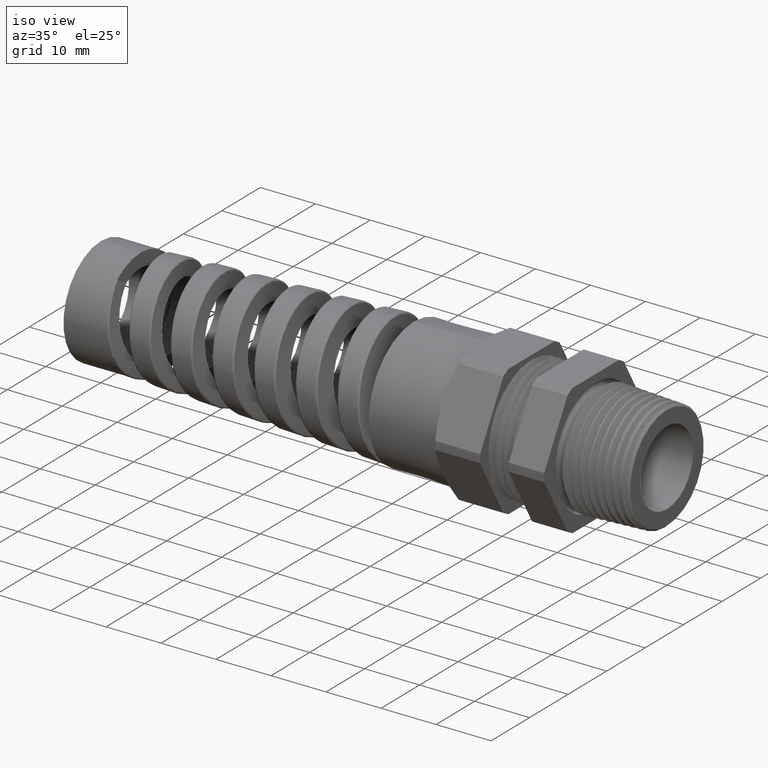
[diagram: clean part render]
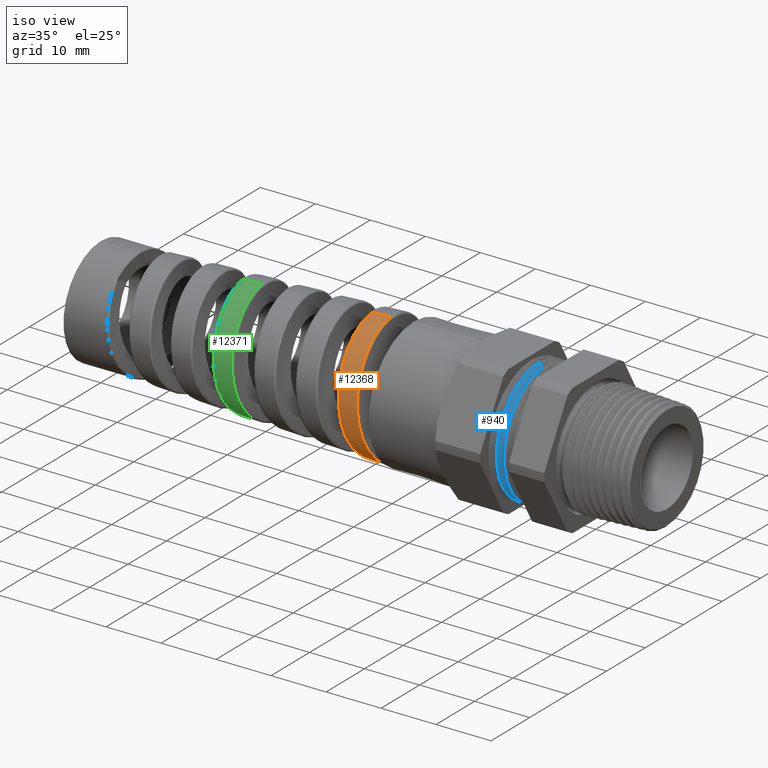
[diagram: same view with three faces highlighted in distinct colors, each labeled with its STEP entity id]
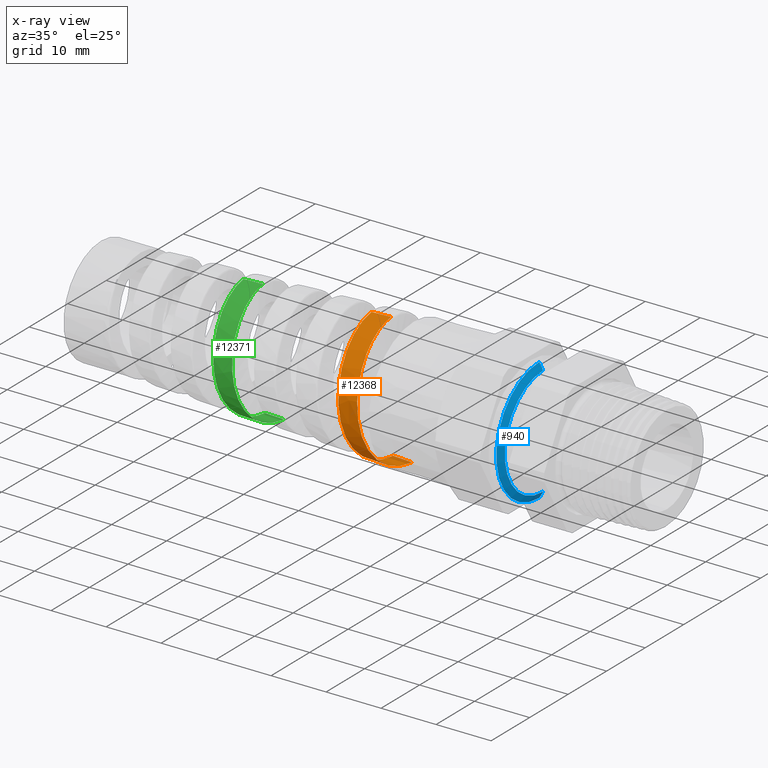
[diagram: x-ray of the same camera — body ghosted, the three highlighted faces saturated]
A machine part, iso view with three faces highlighted in distinct colors.
The next image is the same camera in x-ray (body ghosted, the three faces saturated) — at least one of them is partly hidden behind the body in this view.
Their STEP definitions:

[orange] entity #12368 — the highlighted conical surface has half-angle 2.001 deg.
#393 = EDGE_CURVE ( 'NONE', #7571, #7597, #3219, .T. ) ;
#3216 = DIRECTION ( 'NONE',  ( 0.9993904554178625300, 4.275258673359080400E-018, 0.03491013634572581700 ) ) ;
#3217 = VECTOR ( 'NONE', #3216, 39.37007874015748900 ) ;
#3218 = CARTESIAN_POINT ( 'NONE',  ( -0.8125000000000001100, 5.755839955992556000E-017, 0.4699999999999997000 ) ) ;
#3219 = LINE ( 'NONE', #3218, #3217 ) ;
#7571 = VERTEX_POINT ( 'NONE', #8181 ) ;
#7597 = VERTEX_POINT ( 'NONE', #8137 ) ;
#8137 = CARTESIAN_POINT ( 'NONE',  ( -1.465141312794867800, 4.954529261898974400E-013, 0.4472023065749649600 ) ) ;
#8181 = CARTESIAN_POINT ( 'NONE',  ( -1.603568336751290300, -1.489853139386474200E-015, 0.4423668528701051300 ) ) ;
#10684 = CARTESIAN_POINT ( 'NONE',  ( -1.312209371053904200, 8.222431747549015300E-014, -0.4525444377798915600 ) ) ;
#10752 = CARTESIAN_POINT ( 'NONE',  ( -1.318575534608142300, -0.05888124564318002900, -0.4487181702074030700 ) ) ;
#10753 = CARTESIAN_POINT ( 'NONE',  ( -1.315378167853282100, -0.02938545523317982100, -0.4517217542718365300 ) ) ;
#10754 = CARTESIAN_POINT ( 'NONE',  ( -1.313791009773092700, -0.01467450608213547900, -0.4524891888798901500 ) ) ;
#10755 = CARTESIAN_POINT ( 'NONE',  ( -1.312209371053904200, 8.222431747549015300E-014, -0.4525444377798915600 ) ) ;
#10756 = B_SPLINE_CURVE_WITH_KNOTS ( 'NONE', 3,
 ( #10755, #10754, #10753, #10752, #10824, #10823, #10822, #10821, #10820, #10819, #10818, #10817, #10816, #10815, #10814, #10813, #10812, #10811, #10810, #10809, #10808, #10807, #10806, #10805, #10804, #10803, #10802, #10801, #10800, #10799, #10798, #10797, #10796, #10795, #10794, #10793, #10792, #10791, #10790, #10789, #10788, #10787, #10786, #10785, #10784, #10783 ),
 .UNSPECIFIED., .F., .F.,
 ( 4, 2, 2, 2, 2, 2, 2, 2, 2, 2, 2, 2, 2, 2, 2, 2, 2, 2, 2, 2, 2, 2, 4 ),
 ( 0.002687642308744885200, 0.003826724862786683300, 0.004965807416828482400, 0.007243972524912081200, 0.008383055078953882000, 0.009522137632995683600, 0.01180030274107929000, 0.01407846784916289400, 0.01521755040320469500, 0.01635663295724649700, 0.01863479806533009700, 0.02091296317341369600, 0.02319112828149729600, 0.02433021083553909800, 0.02546929338958089900, 0.02774745849766450600, 0.03002562360574810900, 0.03116470615978991400, 0.03230378871383171600, 0.03458195382191531900, 0.03572103637595712400, 0.03686011892999892200, 0.03913828403808252600 ),
 .UNSPECIFIED. ) ;
#10779 = DIRECTION ( 'NONE',  ( 0.9993904554178625300, 0.0000000000000000000, -0.03491013634572581700 ) ) ;
#10780 = VECTOR ( 'NONE', #10779, 39.37007874015748900 ) ;
#10781 = CARTESIAN_POINT ( 'NONE',  ( -0.8125000000000001100, 0.0000000000000000000, -0.4699999999999997000 ) ) ;
#10782 = LINE ( 'NONE', #10781, #10780 ) ;
#10783 = CARTESIAN_POINT ( 'NONE',  ( -1.465141312794867800, 4.954529261898974400E-013, 0.4472023065749649600 ) ) ;
#10784 = CARTESIAN_POINT ( 'NONE',  ( -1.461921420796968400, -0.02961779108017513100, 0.4473147820024505100 ) ) ;
#10785 = CARTESIAN_POINT ( 'NONE',  ( -1.458743433776894100, -0.05882146215813661300, 0.4445118142382443200 ) ) ;
#10786 = CARTESIAN_POINT ( 'NONE',  ( -1.453947133954004700, -0.1020136535638736100, 0.4360598896748147900 ) ) ;
#10787 = CARTESIAN_POINT ( 'NONE',  ( -1.452343768974157200, -0.1163081308085358600, 0.4325295692158346900 ) ) ;
#10788 = CARTESIAN_POINT ( 'NONE',  ( -1.449114921291519300, -0.1446838231024024600, 0.4240011707235451500 ) ) ;
#10789 = CARTESIAN_POINT ( 'NONE',  ( -1.447497875440096200, -0.1586881145828206700, 0.4190179330741835600 ) ) ;
#10790 = CARTESIAN_POINT ( 'NONE',  ( -1.442701264456387000, -0.1994912566699423600, 0.4021946982351489200 ) ) ;
#10791 = CARTESIAN_POINT ( 'NONE',  ( -1.439539588943694600, -0.2253608864282575800, 0.3884217062358448800 ) ) ;
#10792 = CARTESIAN_POINT ( 'NONE',  ( -1.434749266899820300, -0.2621492826891932400, 0.3639167647814227600 ) ) ;
#10793 = CARTESIAN_POINT ( 'NONE',  ( -1.433135475111862600, -0.2741360321996753600, 0.3550480078668696300 ) ) ;
#10794 = CARTESIAN_POINT ( 'NONE',  ( -1.429930190904961100, -0.2970017232406690900, 0.3363034841885619300 ) ) ;
#10795 = CARTESIAN_POINT ( 'NONE',  ( -1.428337321923081700, -0.3078970164376643200, 0.3264288561997995600 ) ) ;
#10796 = CARTESIAN_POINT ( 'NONE',  ( -1.423563419324926500, -0.3390085140515496900, 0.2953372102358121600 ) ) ;
#10797 = CARTESIAN_POINT ( 'NONE',  ( -1.420386601834414500, -0.3576655022775728800, 0.2726666350403584300 ) ) ;
#10798 = CARTESIAN_POINT ( 'NONE',  ( -1.413933492444612300, -0.3906509154998609700, 0.2233068217233074600 ) ) ;
#10799 = CARTESIAN_POINT ( 'NONE',  ( -1.410751749127603800, -0.4045081059426081100, 0.1972943374230199400 ) ) ;
#10800 = CARTESIAN_POINT ( 'NONE',  ( -1.405994551776630600, -0.4213206493733224800, 0.1566708685485210500 ) ) ;
#10801 = CARTESIAN_POINT ( 'NONE',  ( -1.404408721910386000, -0.4262688663343969800, 0.1428437445281132100 ) ) ;
#10802 = CARTESIAN_POINT ( 'NONE',  ( -1.401219673645794300, -0.4348270660947277100, 0.1146081336986260700 ) ) ;
#10803 = CARTESIAN_POINT ( 'NONE',  ( -1.399608891852881300, -0.4384455912230883500, 0.1001298154856408000 ) ) ;
#10804 = CARTESIAN_POINT ( 'NONE',  ( -1.394820924247132100, -0.4470478700313502100, 0.05668303405232688600 ) ) ;
#10805 = CARTESIAN_POINT ( 'NONE',  ( -1.391664014847806100, -0.4498875259949270400, 0.02750548655281216700 ) ) ;
#10806 = CARTESIAN_POINT ( 'NONE',  ( -1.385296386945820100, -0.4498650357898812400, -0.03125574213339065600 ) ) ;
#10807 = CARTESIAN_POINT ( 'NONE',  ( -1.382059435145433800, -0.4469079354846208200, -0.06107524894473634300 ) ) ;
#10808 = CARTESIAN_POINT ( 'NONE',  ( -1.375700285235825500, -0.4353971029296712600, -0.1186855851561564900 ) ) ;
#10809 = CARTESIAN_POINT ( 'NONE',  ( -1.372553184155333100, -0.4268869507301921700, -0.1467413265745504400 ) ) ;
#10810 = CARTESIAN_POINT ( 'NONE',  ( -1.367776590573644100, -0.4099276877969880700, -0.1876720877331551100 ) ) ;
#10811 = CARTESIAN_POINT ( 'NONE',  ( -1.366170293259385800, -0.4035425113829151900, -0.2011589757500082400 ) ) ;
#10812 = CARTESIAN_POINT ( 'NONE',  ( -1.362990491807552400, -0.3896249562737886800, -0.2271651641871807200 ) ) ;
#10813 = CARTESIAN_POINT ( 'NONE',  ( -1.361408969255859100, -0.3820682471228069000, -0.2397551491852618300 ) ) ;
#10814 = CARTESIAN_POINT ( 'NONE',  ( -1.356664993033808200, -0.3576402820727260800, -0.2763074473746159300 ) ) ;
#10815 = CARTESIAN_POINT ( 'NONE',  ( -1.353493092561997900, -0.3389642573468700800, -0.2991275787414494100 ) ) ;
#10816 = CARTESIAN_POINT ( 'NONE',  ( -1.347074697536499300, -0.2970117583085000700, -0.3411164309290956000 ) ) ;
#10817 = CARTESIAN_POINT ( 'NONE',  ( -1.343916789611228700, -0.2743105218420138800, -0.3597343794906856500 ) ) ;
#10818 = CARTESIAN_POINT ( 'NONE',  ( -1.339179373444405100, -0.2377705676188457400, -0.3842197179325910200 ) ) ;
#10819 = CARTESIAN_POINT ( 'NONE',  ( -1.337599166250159400, -0.2251730146568993200, -0.3918037290910184600 ) ) ;
#10820 = CARTESIAN_POINT ( 'NONE',  ( -1.334419684038519000, -0.1991238906995756700, -0.4057869672649900800 ) ) ;
#10821 = CARTESIAN_POINT ( 'NONE',  ( -1.332818615911781400, -0.1856530481758413300, -0.4121838352934990000 ) ) ;
#10822 = CARTESIAN_POINT ( 'NONE',  ( -1.328065677520147800, -0.1448364417246374700, -0.4291695767027442500 ) ) ;
#10823 = CARTESIAN_POINT ( 'NONE',  ( -1.324928220218478700, -0.1168089179986212100, -0.4377390840938872300 ) ) ;
#10824 = CARTESIAN_POINT ( 'NONE',  ( -1.320174470161855000, -0.07356074809641409400, -0.4464861227173772000 ) ) ;
#10990 = CARTESIAN_POINT ( 'NONE',  ( -1.504629963252611400, -0.3992643735784838200, -0.1988944949467207900 ) ) ;
#10991 = CARTESIAN_POINT ( 'NONE',  ( -1.506213917387802900, -0.4054766819055655200, -0.1857620217883155200 ) ) ;
#10992 = CARTESIAN_POINT ( 'NONE',  ( -1.510966049022561600, -0.4221418328338003000, -0.1455938495777091000 ) ) ;
#10993 = CARTESIAN_POINT ( 'NONE',  ( -1.514140627696988400, -0.4306521901885410600, -0.1177441127596156700 ) ) ;
#10994 = CARTESIAN_POINT ( 'NONE',  ( -1.520573681881108400, -0.4421645185131553000, -0.06012783464594363700 ) ) ;
#10995 = CARTESIAN_POINT ( 'NONE',  ( -1.523731457960821700, -0.4450056849816952400, -0.03121785199996229500 ) ) ;
#10996 = CARTESIAN_POINT ( 'NONE',  ( -1.528480349558426000, -0.4450564932818205100, 0.01228357811907570400 ) ) ;
#10997 = CARTESIAN_POINT ( 'NONE',  ( -1.530065324600560000, -0.4443665183711529300, 0.02680696693565125200 ) ) ;
#10998 = CARTESIAN_POINT ( 'NONE',  ( -1.533256527760919400, -0.4415386244797566100, 0.05589879284642541900 ) ) ;
#10999 = CARTESIAN_POINT ( 'NONE',  ( -1.534866445107167400, -0.4393859348396750300, 0.07049879741305552200 ) ) ;
#11000 = CARTESIAN_POINT ( 'NONE',  ( -1.539648801965484100, -0.4308794798009651900, 0.1134122920349221700 ) ) ;
#11001 = CARTESIAN_POINT ( 'NONE',  ( -1.542808816170694800, -0.4224817301785335800, 0.1411593738708560600 ) ) ;
#11002 = CARTESIAN_POINT ( 'NONE',  ( -1.547596426721641800, -0.4058275736413460300, 0.1814870955404353200 ) ) ;
#11003 = CARTESIAN_POINT ( 'NONE',  ( -1.549205778688396400, -0.3995701849071499100, 0.1947588363601839600 ) ) ;
#11004 = CARTESIAN_POINT ( 'NONE',  ( -1.552427370997247800, -0.3857516599001322200, 0.2206422801889092500 ) ) ;
#11005 = CARTESIAN_POINT ( 'NONE',  ( -1.554025374312775400, -0.3782562180200744800, 0.2331427465553213000 ) ) ;
#11006 = CARTESIAN_POINT ( 'NONE',  ( -1.558798173982735900, -0.3540663084695773200, 0.2693595428878080600 ) ) ;
#11007 = CARTESIAN_POINT ( 'NONE',  ( -1.561957042781371200, -0.3356843236959316000, 0.2918026839822361300 ) ) ;
#11008 = CARTESIAN_POINT ( 'NONE',  ( -1.566761666307768800, -0.3046526621601770000, 0.3228442484903732400 ) ) ;
#11009 = CARTESIAN_POINT ( 'NONE',  ( -1.568373915317046000, -0.2937246634655965600, 0.3327397066144849900 ) ) ;
#11010 = CARTESIAN_POINT ( 'NONE',  ( -1.571566934626596100, -0.2711875601018175500, 0.3512097029223088000 ) ) ;
#11011 = CARTESIAN_POINT ( 'NONE',  ( -1.574746513704976800, -0.2478557874082033500, 0.3684790572788310100 ) ) ;
#11012 = CARTESIAN_POINT ( 'NONE',  ( -1.577931351473225400, -0.2229617131771468000, 0.3833816344722457700 ) ) ;
#11013 = CARTESIAN_POINT ( 'NONE',  ( -1.581133455344157400, -0.1972774467875090300, 0.3970842017703333200 ) ) ;
#11014 = CARTESIAN_POINT ( 'NONE',  ( -1.582751325749437200, -0.1839710207003049700, 0.4033628360539094900 ) ) ;
#11015 = CARTESIAN_POINT ( 'NONE',  ( -1.587589958762832600, -0.1433398078800198200, 0.4201126828262231000 ) ) ;
#11016 = CARTESIAN_POINT ( 'NONE',  ( -1.590765182135280000, -0.1155450490514995200, 0.4284575689937941700 ) ) ;
#11017 = CARTESIAN_POINT ( 'NONE',  ( -1.595544214840330900, -0.07283058603178295400, 0.4368555374011837100 ) ) ;
#11018 = CARTESIAN_POINT ( 'NONE',  ( -1.597140371302901300, -0.05842086407925204500, 0.4389633492312109400 ) ) ;
#11019 = CARTESIAN_POINT ( 'NONE',  ( -1.600356614124758000, -0.02924992630306180400, 0.4417542589321558600 ) ) ;
#11020 = CARTESIAN_POINT ( 'NONE',  ( -1.601969484048676700, -0.01455442791696354300, 0.4424227030791423900 ) ) ;
#11021 = CARTESIAN_POINT ( 'NONE',  ( -1.603568336751290300, -1.489853139386474200E-015, 0.4423668528701051300 ) ) ;
#11022 = FACE_OUTER_BOUND ( 'NONE', #12360, .T. ) ;
#11024 = B_SPLINE_CURVE_WITH_KNOTS ( 'NONE', 3,
 ( #11021, #11020, #11019, #11018, #11017, #11016, #11015, #11014, #11013, #11012, #11011, #11010, #11009, #11008, #11007, #11006, #11005, #11004, #11003, #11002, #11001, #11000, #10999, #10998, #10997, #10996, #10995, #10994, #10993, #10992, #10991, #10990, #11065, #11064, #11063, #11062, #11061, #11060, #11059, #11058, #11057, #11056, #11055, #11054, #11053, #11052, #11051 ),
 .UNSPECIFIED., .F., .F.,
 ( 4, 2, 2, 2, 2, 1, 2, 2, 2, 2, 2, 2, 2, 2, 2, 2, 2, 2, 2, 2, 2, 2, 2, 4 ),
 ( 0.3610147590502930700, 0.3621372730024491900, 0.3632597869546053100, 0.3655048148589176100, 0.3666273288110737400, 0.3677498427632298600, 0.3688723567153859900, 0.3699948706675421100, 0.3722398985718543600, 0.3733624125240104800, 0.3744849264761666000, 0.3767299543804789000, 0.3778524683326350300, 0.3789749822847911500, 0.3812200101891034000, 0.3834650380934156400, 0.3845875520455718200, 0.3857100659977279500, 0.3879550939020401900, 0.3902001218063524400, 0.3924451497106647400, 0.3935676636628208700, 0.3946901776149769900, 0.3969352055192892400 ),
 .UNSPECIFIED. ) ;
#11027 = CARTESIAN_POINT ( 'NONE',  ( -1.450700900281004700, -2.729856075225326100E-016, -0.4477067308137742700 ) ) ;
#11045 = DIRECTION ( 'NONE',  ( 0.0000000000000000000, 0.0000000000000000000, -1.000000000000000000 ) ) ;
#11046 = DIRECTION ( 'NONE',  ( 1.000000000000000000, 0.0000000000000000000, 0.0000000000000000000 ) ) ;
#11047 = AXIS2_PLACEMENT_3D ( 'NONE', #11050, #11046, #11045 ) ;
#11048 = CONICAL_SURFACE ( 'NONE', #11047, 0.4699999999999997000, 0.03491723117042447300 ) ;
#11050 = CARTESIAN_POINT ( 'NONE',  ( -0.8125000000000001100, 0.0000000000000000000, 0.0000000000000000000 ) ) ;
#11051 = CARTESIAN_POINT ( 'NONE',  ( -1.450700900281004700, -2.729856075225326100E-016, -0.4477067308137742700 ) ) ;
#11052 = CARTESIAN_POINT ( 'NONE',  ( -1.453898587296870800, -0.02938174525363302200, -0.4475950310380663000 ) ) ;
#11053 = CARTESIAN_POINT ( 'NONE',  ( -1.457043737550176400, -0.05834372666362930300, -0.4446117145386753700 ) ) ;
#11054 = CARTESIAN_POINT ( 'NONE',  ( -1.461765425288924700, -0.1009754748304708100, -0.4360154709600084200 ) ) ;
#11055 = CARTESIAN_POINT ( 'NONE',  ( -1.463340857065054100, -0.1150611572050864700, -0.4324581683144866400 ) ) ;
#11056 = CARTESIAN_POINT ( 'NONE',  ( -1.466511641143516400, -0.1429757707988910400, -0.4239315985732071700 ) ) ;
#11057 = CARTESIAN_POINT ( 'NONE',  ( -1.468114414723850700, -0.1568657763349625700, -0.4189312702050646500 ) ) ;
#11058 = CARTESIAN_POINT ( 'NONE',  ( -1.472881267088818700, -0.1973068422340082400, -0.4020835598584731600 ) ) ;
#11059 = CARTESIAN_POINT ( 'NONE',  ( -1.476028401422745600, -0.2228551071731808800, -0.3883682538032151600 ) ) ;
#11060 = CARTESIAN_POINT ( 'NONE',  ( -1.482374328027226800, -0.2711566858882516500, -0.3560481766347129400 ) ) ;
#11061 = CARTESIAN_POINT ( 'NONE',  ( -1.485597180393893400, -0.2940605956545768200, -0.3372302601639081700 ) ) ;
#11062 = CARTESIAN_POINT ( 'NONE',  ( -1.491929477404738700, -0.3351383621700413400, -0.2961092478202196900 ) ) ;
#11063 = CARTESIAN_POINT ( 'NONE',  ( -1.495069449773478900, -0.3535464170464530700, -0.2737038379015406800 ) ) ;
#11064 = CARTESIAN_POINT ( 'NONE',  ( -1.499840154729382700, -0.3779051532617783700, -0.2372934958034163000 ) ) ;
#11065 = CARTESIAN_POINT ( 'NONE',  ( -1.501446730314325500, -0.3854995509612450000, -0.2246337355500890300 ) ) ;
#11899 = VERTEX_POINT ( 'NONE', #10684 ) ;
#12324 = ORIENTED_EDGE ( 'NONE', *, *, #12325, .T. ) ;
#12325 = EDGE_CURVE ( 'NONE', #11899, #7597, #10756, .T. ) ;
#12328 = EDGE_CURVE ( 'NONE', #12356, #11899, #10782, .T. ) ;
#12333 = ORIENTED_EDGE ( 'NONE', *, *, #12328, .T. ) ;
#12356 = VERTEX_POINT ( 'NONE', #11027 ) ;
#12358 = ORIENTED_EDGE ( 'NONE', *, *, #393, .F. ) ;
#12360 = EDGE_LOOP ( 'NONE', ( #12358, #12364, #12333, #12324 ) ) ;
#12364 = ORIENTED_EDGE ( 'NONE', *, *, #12365, .T. ) ;
#12365 = EDGE_CURVE ( 'NONE', #7571, #12356, #11024, .T. ) ;
#12368 = ADVANCED_FACE ( 'NONE', ( #11022 ), #11048, .T. ) ;

[blue] entity #940 — the highlighted conical surface has half-angle 60 deg.
#788 = EDGE_CURVE ( 'NONE', #7539, #7523, #4029, .T. ) ;
#936 = EDGE_CURVE ( 'NONE', #7544, #7543, #4192, .T. ) ;
#940 = ADVANCED_FACE ( 'NONE', ( #4187 ), #4251, .T. ) ;
#941 = EDGE_LOOP ( 'NONE', ( #942, #1010, #1011, #1012 ) ) ;
#942 = ORIENTED_EDGE ( 'NONE', *, *, #7545, .F. ) ;
#1010 = ORIENTED_EDGE ( 'NONE', *, *, #936, .F. ) ;
#1011 = ORIENTED_EDGE ( 'NONE', *, *, #7537, .T. ) ;
#1012 = ORIENTED_EDGE ( 'NONE', *, *, #788, .T. ) ;
#4026 = DIRECTION ( 'NONE',  ( 0.0000000000000000000, 0.0000000000000000000, -1.000000000000000000 ) ) ;
#4027 = DIRECTION ( 'NONE',  ( 1.000000000000000000, 0.0000000000000000000, 0.0000000000000000000 ) ) ;
#4028 = AXIS2_PLACEMENT_3D ( 'NONE', #4034, #4027, #4026 ) ;
#4029 = CIRCLE ( 'NONE', #4028, 0.4399000000000000100 ) ;
#4034 = CARTESIAN_POINT ( 'NONE',  ( -0.4031666666666665600, 0.0000000000000000000, 0.0000000000000000000 ) ) ;
#4187 = FACE_OUTER_BOUND ( 'NONE', #941, .T. ) ;
#4188 = DIRECTION ( 'NONE',  ( 0.0000000000000000000, 0.0000000000000000000, -1.000000000000000000 ) ) ;
#4189 = DIRECTION ( 'NONE',  ( 1.000000000000000000, 0.0000000000000000000, 0.0000000000000000000 ) ) ;
#4190 = CARTESIAN_POINT ( 'NONE',  ( -0.3756666794885449300, 0.0000000000000000000, 0.0000000000000000000 ) ) ;
#4191 = AXIS2_PLACEMENT_3D ( 'NONE', #4190, #4189, #4188 ) ;
#4192 = CIRCLE ( 'NONE', #4191, 0.3922686249999999800 ) ;
#4247 = DIRECTION ( 'NONE',  ( 0.0000000000000000000, 0.0000000000000000000, 1.000000000000000000 ) ) ;
#4248 = DIRECTION ( 'NONE',  ( -1.000000000000000000, 0.0000000000000000000, 0.0000000000000000000 ) ) ;
#4249 = CARTESIAN_POINT ( 'NONE',  ( -0.4031666666666665600, 0.0000000000000000000, 0.0000000000000000000 ) ) ;
#4250 = AXIS2_PLACEMENT_3D ( 'NONE', #4249, #4248, #4247 ) ;
#4251 = CONICAL_SURFACE ( 'NONE', #4250, 0.4399000000000000100, 1.047197551196604300 ) ;
#7523 = VERTEX_POINT ( 'NONE', #10339 ) ;
#7537 = EDGE_CURVE ( 'NONE', #7544, #7539, #10373, .T. ) ;
#7539 = VERTEX_POINT ( 'NONE', #10364 ) ;
#7543 = VERTEX_POINT ( 'NONE', #10362 ) ;
#7544 = VERTEX_POINT ( 'NONE', #10361 ) ;
#7545 = EDGE_CURVE ( 'NONE', #7543, #7523, #10359, .T. ) ;
#7924 = DIRECTION ( 'NONE',  ( -0.4999999999999943400, 1.060575238724910900E-016, -0.8660254037844418200 ) ) ;
#10339 = CARTESIAN_POINT ( 'NONE',  ( -0.4031666666666665600, 5.387221269449206900E-017, -0.4399000000000000100 ) ) ;
#10357 = VECTOR ( 'NONE', #7924, 39.37007874015748100 ) ;
#10358 = CARTESIAN_POINT ( 'NONE',  ( -0.4031666666666665600, 5.387221269449206900E-017, -0.4399000000000000100 ) ) ;
#10359 = LINE ( 'NONE', #10358, #10357 ) ;
#10361 = CARTESIAN_POINT ( 'NONE',  ( -0.3756666794885449300, 5.095563214785520700E-017, 0.3922686249999999800 ) ) ;
#10362 = CARTESIAN_POINT ( 'NONE',  ( -0.3756666794885449300, 0.0000000000000000000, -0.3922686249999999800 ) ) ;
#10364 = CARTESIAN_POINT ( 'NONE',  ( -0.4031666666666665600, 0.0000000000000000000, 0.4399000000000000100 ) ) ;
#10370 = DIRECTION ( 'NONE',  ( -0.4999999999999943400, 0.0000000000000000000, 0.8660254037844418200 ) ) ;
#10371 = VECTOR ( 'NONE', #10370, 39.37007874015748100 ) ;
#10372 = CARTESIAN_POINT ( 'NONE',  ( -0.4031666666666665600, 0.0000000000000000000, 0.4399000000000000100 ) ) ;
#10373 = LINE ( 'NONE', #10372, #10371 ) ;

[green] entity #12371 — the highlighted conical surface has half-angle 2.001 deg.
#363 = VERTEX_POINT ( 'NONE', #2875 ) ;
#365 = EDGE_CURVE ( 'NONE', #7577, #366, #2901, .T. ) ;
#366 = VERTEX_POINT ( 'NONE', #2897 ) ;
#390 = VERTEX_POINT ( 'NONE', #3196 ) ;
#2875 = CARTESIAN_POINT ( 'NONE',  ( -2.229694748373849400, 4.670599056941890300E-013, -0.4204953628224397700 ) ) ;
#2897 = CARTESIAN_POINT ( 'NONE',  ( -2.382622367421261400, -1.149951966428153800E-012, 0.4151533826153743200 ) ) ;
#2898 = DIRECTION ( 'NONE',  ( 0.9993904554178625300, 4.275258673359080400E-018, 0.03491013634572581700 ) ) ;
#2899 = VECTOR ( 'NONE', #2898, 39.37007874015748900 ) ;
#2900 = CARTESIAN_POINT ( 'NONE',  ( -0.8125000000000001100, 5.755839955992556000E-017, 0.4699999999999997000 ) ) ;
#2901 = LINE ( 'NONE', #2900, #2899 ) ;
#3196 = CARTESIAN_POINT ( 'NONE',  ( -2.367991258203965700, 1.376453146588461100E-015, -0.4156644681624654900 ) ) ;
#5738 = CARTESIAN_POINT ( 'NONE',  ( -2.421937772607641600, -0.3705138511437254300, -0.1847081453841502000 ) ) ;
#5739 = CARTESIAN_POINT ( 'NONE',  ( -2.423519178171731800, -0.3762812604398310100, -0.1725156331933148100 ) ) ;
#7577 = VERTEX_POINT ( 'NONE', #8168 ) ;
#8168 = CARTESIAN_POINT ( 'NONE',  ( -2.520890088642536900, 4.992758714066717700E-016, 0.4103234935826345400 ) ) ;
#10631 = CARTESIAN_POINT ( 'NONE',  ( -2.428259463434470500, -0.3917489808031884800, -0.1352333020396954400 ) ) ;
#10632 = CARTESIAN_POINT ( 'NONE',  ( -2.431414276636171900, -0.3996324846196606700, -0.1094454668331329000 ) ) ;
#10633 = CARTESIAN_POINT ( 'NONE',  ( -2.437843277645832500, -0.4103287766444933000, -0.05593816685446537800 ) ) ;
#10634 = CARTESIAN_POINT ( 'NONE',  ( -2.441013838299670000, -0.4129656233676128300, -0.02909054926944621600 ) ) ;
#10635 = CARTESIAN_POINT ( 'NONE',  ( -2.445778394339314800, -0.4130126210172371800, 0.01126922566965633100 ) ) ;
#10636 = CARTESIAN_POINT ( 'NONE',  ( -2.447367261917129600, -0.4123726027615549600, 0.02473960722672612100 ) ) ;
#10637 = CARTESIAN_POINT ( 'NONE',  ( -2.450560761750872900, -0.4097521216034766800, 0.05171367237363764400 ) ) ;
#10638 = CARTESIAN_POINT ( 'NONE',  ( -2.452172265238036400, -0.4077555877938338100, 0.06526729650967644200 ) ) ;
#10639 = CARTESIAN_POINT ( 'NONE',  ( -2.456956277287567900, -0.3998576230705256400, 0.1051221102214146100 ) ) ;
#10640 = CARTESIAN_POINT ( 'NONE',  ( -2.460108003902902900, -0.3920612156359839500, 0.1308744653176563100 ) ) ;
#10641 = CARTESIAN_POINT ( 'NONE',  ( -2.466469698823710500, -0.3714664833717840100, 0.1807470974355432100 ) ) ;
#10642 = CARTESIAN_POINT ( 'NONE',  ( -2.469703687470137700, -0.3585130386158459900, 0.2050142869672479900 ) ) ;
#10643 = CARTESIAN_POINT ( 'NONE',  ( -2.476083007224400700, -0.3285685063518440900, 0.2498430991252181300 ) ) ;
#10644 = CARTESIAN_POINT ( 'NONE',  ( -2.479257844683084400, -0.3115118876241197400, 0.2706605508848083400 ) ) ;
#10645 = CARTESIAN_POINT ( 'NONE',  ( -2.484067546616383300, -0.2827435457698857500, 0.2994372136629003800 ) ) ;
#10646 = CARTESIAN_POINT ( 'NONE',  ( -2.485683257058080900, -0.2725935147773910800, 0.3086292099027583800 ) ) ;
#10647 = CARTESIAN_POINT ( 'NONE',  ( -2.488879200144843700, -0.2516619724148611600, 0.3257815018115779400 ) ) ;
#10648 = CARTESIAN_POINT ( 'NONE',  ( -2.492057140544310800, -0.2299990576193030600, 0.3418116665778069300 ) ) ;
#10649 = CARTESIAN_POINT ( 'NONE',  ( -2.495232971974926400, -0.2069018257970335100, 0.3556339568127296300 ) ) ;
#10650 = CARTESIAN_POINT ( 'NONE',  ( -2.498424454047603500, -0.1830810709581736100, 0.3683388692487717900 ) ) ;
#10651 = CARTESIAN_POINT ( 'NONE',  ( -2.500034333993418100, -0.1707594303824264100, 0.3741526716492069600 ) ) ;
#10652 = CARTESIAN_POINT ( 'NONE',  ( -2.504869959171663700, -0.1330079494947897800, 0.3897111625252517900 ) ) ;
#10653 = CARTESIAN_POINT ( 'NONE',  ( -2.508052384471981100, -0.1072026795083791100, 0.3974492017181297000 ) ) ;
#10654 = CARTESIAN_POINT ( 'NONE',  ( -2.512847828228157400, -0.06757837638512355400, 0.4052287368470591200 ) ) ;
#10655 = CARTESIAN_POINT ( 'NONE',  ( -2.514449617195477300, -0.05421639911926664400, 0.4071794004340789600 ) ) ;
#10656 = CARTESIAN_POINT ( 'NONE',  ( -2.517670796440849100, -0.02717753409887366900, 0.4097602789711982700 ) ) ;
#10657 = CARTESIAN_POINT ( 'NONE',  ( -2.519288984346170800, -0.01351647598475079100, 0.4103794224430580800 ) ) ;
#10658 = CARTESIAN_POINT ( 'NONE',  ( -2.520890088642536900, 4.992758714066717700E-016, 0.4103234935826345400 ) ) ;
#10661 = B_SPLINE_CURVE_WITH_KNOTS ( 'NONE', 3,
 ( #10658, #10657, #10656, #10655, #10654, #10653, #10652, #10651, #10650, #10649, #10648, #10647, #10646, #10645, #10644, #10643, #10642, #10641, #10640, #10639, #10638, #10637, #10636, #10635, #10634, #10633, #10632, #10631, #5739, #5738, #10703, #10702, #10701, #10700, #10699, #10698, #10697, #10696, #10695, #10694, #10693, #10692, #10691, #10690, #10689 ),
 .UNSPECIFIED., .F., .F.,
 ( 4, 2, 2, 2, 2, 1, 2, 2, 2, 2, 2, 2, 2, 2, 2, 2, 2, 2, 2, 2, 2, 2, 4 ),
 ( 0.1545052104298216800, 0.1555471624159704400, 0.1565891144021192000, 0.1586730183744167500, 0.1597149703605655100, 0.1607569223467142600, 0.1617988743328630500, 0.1628408263190118100, 0.1649247302913093300, 0.1670086342636068800, 0.1690925382359043900, 0.1701344902220531800, 0.1711764422082019400, 0.1732603461804994600, 0.1753442501527970000, 0.1763862021389457600, 0.1774281541250945200, 0.1795120580973920700, 0.1815959620696895900, 0.1836798660419871300, 0.1847218180281358900, 0.1857637700142846800, 0.1878476739865822000 ),
 .UNSPECIFIED. ) ;
#10689 = CARTESIAN_POINT ( 'NONE',  ( -2.367991258203965700, 1.376453146588461100E-015, -0.4156644681624654900 ) ) ;
#10690 = CARTESIAN_POINT ( 'NONE',  ( -2.371185534604427500, -0.02724655094815310600, -0.4155528875244261000 ) ) ;
#10691 = CARTESIAN_POINT ( 'NONE',  ( -2.374350220991233500, -0.05416739505565200400, -0.4127735045845405400 ) ) ;
#10692 = CARTESIAN_POINT ( 'NONE',  ( -2.379083808957647200, -0.09372285355942629200, -0.4047862872744760800 ) ) ;
#10693 = CARTESIAN_POINT ( 'NONE',  ( -2.380660677974863600, -0.1067892818468493300, -0.4014828628310990700 ) ) ;
#10694 = CARTESIAN_POINT ( 'NONE',  ( -2.383830951701570600, -0.1326779543861773000, -0.3935696220253455100 ) ) ;
#10695 = CARTESIAN_POINT ( 'NONE',  ( -2.385432313936044900, -0.1455643593305822000, -0.3889289774174737900 ) ) ;
#10696 = CARTESIAN_POINT ( 'NONE',  ( -2.390194450723768700, -0.1831157928724070300, -0.3732786500537760800 ) ) ;
#10697 = CARTESIAN_POINT ( 'NONE',  ( -2.393330240323477700, -0.2068263866358268900, -0.3605432693773117400 ) ) ;
#10698 = CARTESIAN_POINT ( 'NONE',  ( -2.399654430601315900, -0.2516321900339354400, -0.3305550373918714200 ) ) ;
#10699 = CARTESIAN_POINT ( 'NONE',  ( -2.402872790382194700, -0.2728854375710038600, -0.3130924834734679100 ) ) ;
#10700 = CARTESIAN_POINT ( 'NONE',  ( -2.409223799032596900, -0.3110167688618090100, -0.2749147038962584400 ) ) ;
#10701 = CARTESIAN_POINT ( 'NONE',  ( -2.412376731025194200, -0.3280932801706731300, -0.2541233638917014800 ) ) ;
#10702 = CARTESIAN_POINT ( 'NONE',  ( -2.417148928135104400, -0.3506820353688901400, -0.2203584805546864300 ) ) ;
#10703 = CARTESIAN_POINT ( 'NONE',  ( -2.418755472705809200, -0.3577302753664534100, -0.2086112862972716900 ) ) ;
#10773 = DIRECTION ( 'NONE',  ( 0.9993904554178625300, 0.0000000000000000000, -0.03491013634572581700 ) ) ;
#10774 = VECTOR ( 'NONE', #10773, 39.37007874015748900 ) ;
#10775 = CARTESIAN_POINT ( 'NONE',  ( -0.8125000000000001100, 0.0000000000000000000, -0.4699999999999997000 ) ) ;
#10776 = LINE ( 'NONE', #10775, #10774 ) ;
#10909 = CARTESIAN_POINT ( 'NONE',  ( -2.264554204031310500, -0.2758870240245284700, -0.3168926174604852500 ) ) ;
#10910 = CARTESIAN_POINT ( 'NONE',  ( -2.261399900261032300, -0.2547549703113478600, -0.3342845096339615600 ) ) ;
#10911 = CARTESIAN_POINT ( 'NONE',  ( -2.255013808039469500, -0.2089257241831500900, -0.3649430503258221900 ) ) ;
#10912 = CARTESIAN_POINT ( 'NONE',  ( -2.251869589597511400, -0.1848744812359448500, -0.3777940640499460300 ) ) ;
#10913 = CARTESIAN_POINT ( 'NONE',  ( -2.247130573769386500, -0.1471660073067451700, -0.3934870102909660000 ) ) ;
#10914 = CARTESIAN_POINT ( 'NONE',  ( -2.245547370468854000, -0.1343225994568045500, -0.3981164556041929500 ) ) ;
#10915 = CARTESIAN_POINT ( 'NONE',  ( -2.242359891927210700, -0.1080764722296912000, -0.4061431727392994500 ) ) ;
#10916 = CARTESIAN_POINT ( 'NONE',  ( -2.240752740212196900, -0.09464756607378566100, -0.4095373605028945800 ) ) ;
#10917 = CARTESIAN_POINT ( 'NONE',  ( -2.235985993073584100, -0.05439028893846663300, -0.4176394713334902800 ) ) ;
#10918 = CARTESIAN_POINT ( 'NONE',  ( -2.232850997029443500, -0.02731103204170412500, -0.4203851105478857400 ) ) ;
#10919 = CARTESIAN_POINT ( 'NONE',  ( -2.229694748373849400, 4.670599056941890300E-013, -0.4204953628224397700 ) ) ;
#10921 = B_SPLINE_CURVE_WITH_KNOTS ( 'NONE', 3,
 ( #10919, #10918, #10917, #10916, #10915, #10914, #10913, #10912, #10911, #10910, #10909, #10989, #10988, #10987, #10986, #10985, #10984, #10983, #10982, #10981, #10980, #10979, #10978, #10977, #10976, #10975, #10974, #10973, #10972, #10971, #10970, #10969, #10968, #10967, #10966, #10965, #10964, #10963, #10962, #10961, #10960, #10959, #10958, #10957, #10956, #10955 ),
 .UNSPECIFIED., .F., .F.,
 ( 4, 2, 2, 2, 2, 2, 2, 2, 2, 2, 2, 2, 2, 2, 2, 2, 2, 2, 2, 2, 2, 2, 4 ),
 ( 0.2149149863450656500, 0.2170310740150339100, 0.2180891178500180300, 0.2191471616850021700, 0.2212632493549704100, 0.2233793370249386700, 0.2244373808599228200, 0.2254954246949069400, 0.2276115123648752000, 0.2286695561998593200, 0.2297276000348434700, 0.2318436877048117300, 0.2339597753747799900, 0.2360758630447482300, 0.2371339068797323800, 0.2381919507147164900, 0.2403080383846847600, 0.2424241260546530500, 0.2434821698896371700, 0.2445402137246213100, 0.2466563013945895800, 0.2477143452295737000, 0.2487723890645578400 ),
 .UNSPECIFIED. ) ;
#10955 = CARTESIAN_POINT ( 'NONE',  ( -2.382622367421261400, -1.149951966428153800E-012, 0.4151533826153743200 ) ) ;
#10956 = CARTESIAN_POINT ( 'NONE',  ( -2.381021729610759000, -0.01362762556350493600, 0.4152092951807425700 ) ) ;
#10957 = CARTESIAN_POINT ( 'NONE',  ( -2.379416029139843800, -0.02729536450399288800, 0.4145960884221056600 ) ) ;
#10958 = CARTESIAN_POINT ( 'NONE',  ( -2.376181163579037300, -0.05471204032582527300, 0.4119895721751276100 ) ) ;
#10959 = CARTESIAN_POINT ( 'NONE',  ( -2.374565406556860700, -0.06834626353082144700, 0.4100016140919586200 ) ) ;
#10960 = CARTESIAN_POINT ( 'NONE',  ( -2.369765330332340300, -0.1085418170058382600, 0.4021068013618692100 ) ) ;
#10961 = CARTESIAN_POINT ( 'NONE',  ( -2.366599812691113900, -0.1346068192492278200, 0.3942691999490015600 ) ) ;
#10962 = CARTESIAN_POINT ( 'NONE',  ( -2.361801034535233600, -0.1725867017766888300, 0.3786265282343476700 ) ) ;
#10963 = CARTESIAN_POINT ( 'NONE',  ( -2.360184586195772600, -0.1851211830742343900, 0.3727224695674583000 ) ) ;
#10964 = CARTESIAN_POINT ( 'NONE',  ( -2.356978866369959100, -0.2093296036041524500, 0.3598140838489593500 ) ) ;
#10965 = CARTESIAN_POINT ( 'NONE',  ( -2.355385444931153800, -0.2210394903223782700, 0.3528031315293895800 ) ) ;
#10966 = CARTESIAN_POINT ( 'NONE',  ( -2.350608863953420600, -0.2550112083914255500, 0.3301402122365464400 ) ) ;
#10967 = CARTESIAN_POINT ( 'NONE',  ( -2.347428990739258500, -0.2761263243248737200, 0.3128740602983225400 ) ) ;
#10968 = CARTESIAN_POINT ( 'NONE',  ( -2.340964865928668400, -0.3151571998308658200, 0.2738611953999532400 ) ) ;
#10969 = CARTESIAN_POINT ( 'NONE',  ( -2.337787559781904400, -0.3324509124745563300, 0.2527302375090700300 ) ) ;
#10970 = CARTESIAN_POINT ( 'NONE',  ( -2.333025070851880000, -0.3551294095294647000, 0.2187743127018133800 ) ) ;
#10971 = CARTESIAN_POINT ( 'NONE',  ( -2.331437011468872700, -0.3621449477792241800, 0.2070726288461428900 ) ) ;
#10972 = CARTESIAN_POINT ( 'NONE',  ( -2.328242719482314500, -0.3750638350579064700, 0.1828885303163802500 ) ) ;
#10973 = CARTESIAN_POINT ( 'NONE',  ( -2.326630538786634600, -0.3809810005814212600, 0.1703563783538307500 ) ) ;
#10974 = CARTESIAN_POINT ( 'NONE',  ( -2.321842371797282900, -0.3966720500147147300, 0.1323696285035600700 ) ) ;
#10975 = CARTESIAN_POINT ( 'NONE',  ( -2.318684093633348800, -0.4045424409780964400, 0.1063120573558752800 ) ) ;
#10976 = CARTESIAN_POINT ( 'NONE',  ( -2.312310629146550500, -0.4151612498843233500, 0.05276244344387318000 ) ) ;
#10977 = CARTESIAN_POINT ( 'NONE',  ( -2.309072784447906600, -0.4178602551759703100, 0.02506923941520342700 ) ) ;
#10978 = CARTESIAN_POINT ( 'NONE',  ( -2.302711797086941700, -0.4177955261505615400, -0.02946594435237523700 ) ) ;
#10979 = CARTESIAN_POINT ( 'NONE',  ( -2.299561482908674600, -0.4151189081722026500, -0.05656502532447807400 ) ) ;
#10980 = CARTESIAN_POINT ( 'NONE',  ( -2.294777754579752700, -0.4070624454048772900, -0.09694385009304512500 ) ) ;
#10981 = CARTESIAN_POINT ( 'NONE',  ( -2.293171468542402700, -0.4036884820412575700, -0.1103743986513380700 ) ) ;
#10982 = CARTESIAN_POINT ( 'NONE',  ( -2.289965943786127500, -0.3956437055005789800, -0.1367722245407527700 ) ) ;
#10983 = CARTESIAN_POINT ( 'NONE',  ( -2.288376062840547400, -0.3910032007562378500, -0.1496635798156833500 ) ) ;
#10984 = CARTESIAN_POINT ( 'NONE',  ( -2.283619516407529900, -0.3752925288926158300, -0.1874442484106988700 ) ) ;
#10985 = CARTESIAN_POINT ( 'NONE',  ( -2.280465406173386400, -0.3624496188444480400, -0.2114483059816472100 ) ) ;
#10986 = CARTESIAN_POINT ( 'NONE',  ( -2.275673962234256100, -0.3395813562757201100, -0.2456434962557315400 ) ) ;
#10987 = CARTESIAN_POINT ( 'NONE',  ( -2.274061712098776500, -0.3313199227269520400, -0.2567685470049238500 ) ) ;
#10988 = CARTESIAN_POINT ( 'NONE',  ( -2.270874155655914900, -0.3139271159878624400, -0.2779317396658823600 ) ) ;
#10989 = CARTESIAN_POINT ( 'NONE',  ( -2.269291877797825000, -0.3047615920702613800, -0.2880288072964595800 ) ) ;
#11039 = DIRECTION ( 'NONE',  ( 0.0000000000000000000, 0.0000000000000000000, -1.000000000000000000 ) ) ;
#11040 = DIRECTION ( 'NONE',  ( 1.000000000000000000, 0.0000000000000000000, 0.0000000000000000000 ) ) ;
#11041 = CARTESIAN_POINT ( 'NONE',  ( -0.8125000000000001100, 0.0000000000000000000, 0.0000000000000000000 ) ) ;
#11042 = AXIS2_PLACEMENT_3D ( 'NONE', #11041, #11040, #11039 ) ;
#11044 = CONICAL_SURFACE ( 'NONE', #11042, 0.4699999999999997000, 0.03491723117042447300 ) ;
#11049 = FACE_OUTER_BOUND ( 'NONE', #12376, .T. ) ;
#11854 = ORIENTED_EDGE ( 'NONE', *, *, #12312, .T. ) ;
#11892 = EDGE_CURVE ( 'NONE', #7577, #390, #10661, .T. ) ;
#11895 = ORIENTED_EDGE ( 'NONE', *, *, #11892, .T. ) ;
#12312 = EDGE_CURVE ( 'NONE', #390, #363, #10776, .T. ) ;
#12342 = ORIENTED_EDGE ( 'NONE', *, *, #12344, .T. ) ;
#12344 = EDGE_CURVE ( 'NONE', #363, #366, #10921, .T. ) ;
#12355 = ORIENTED_EDGE ( 'NONE', *, *, #365, .F. ) ;
#12371 = ADVANCED_FACE ( 'NONE', ( #11049 ), #11044, .T. ) ;
#12376 = EDGE_LOOP ( 'NONE', ( #12355, #11895, #11854, #12342 ) ) ;